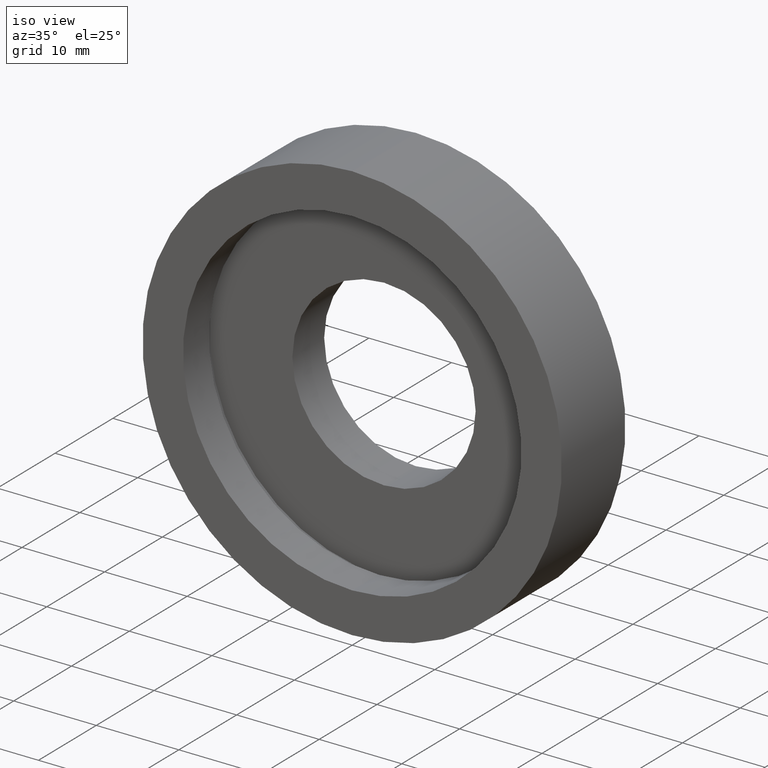
[diagram: clean part render]
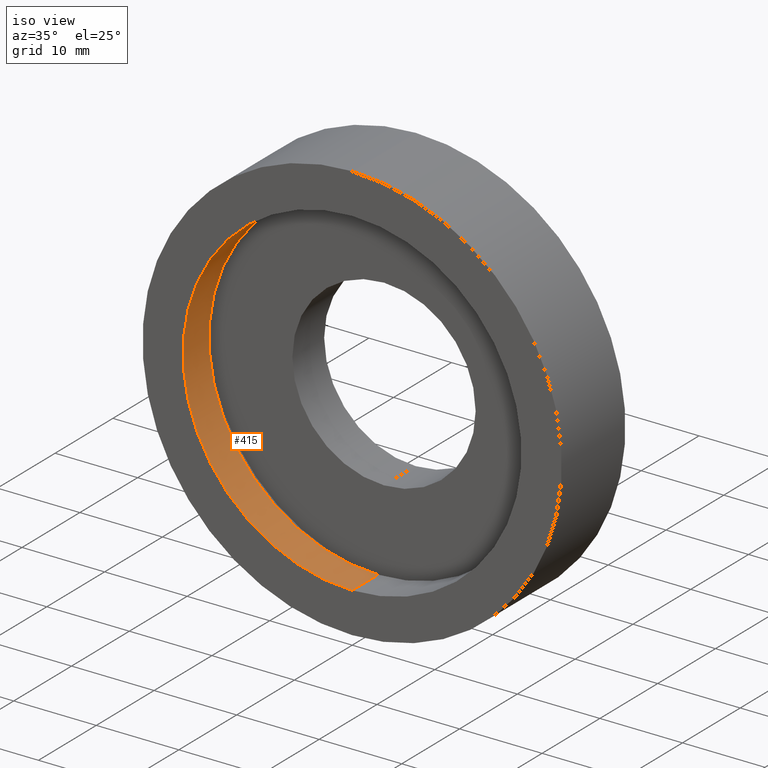
[diagram: same view with one face highlighted and labeled with its STEP entity id]
A machine part, iso view. The second image highlights one B-rep face of the part: STEP entity #415.
In plain terms, the highlighted cylindrical surface (partial cylindrical patch) has radius 20.5 mm, axis along (-0, 1, -0).
Its self-contained STEP definition (entity closure, byte-faithful):
#23 = AXIS2_PLACEMENT_3D ( 'NONE', #37, #196, #148 ) ;
#35 = DIRECTION ( 'NONE',  ( -0.0000000000000000000, 1.000000000000000000, -0.0000000000000000000 ) ) ;
#37 = CARTESIAN_POINT ( 'NONE',  ( 0.0000000000000000000, 0.0000000000000000000, 0.0000000000000000000 ) ) ;
#44 = ORIENTED_EDGE ( 'NONE', *, *, #390, .F. ) ;
#49 = DIRECTION ( 'NONE',  ( -0.0000000000000000000, 1.000000000000000000, -0.0000000000000000000 ) ) ;
#53 = CIRCLE ( 'NONE', #213, 20.50000000000000700 ) ;
#78 = DIRECTION ( 'NONE',  ( 0.0000000000000000000, 0.0000000000000000000, 1.000000000000000000 ) ) ;
#80 = FACE_OUTER_BOUND ( 'NONE', #328, .T. ) ;
#90 = DIRECTION ( 'NONE',  ( -0.0000000000000000000, 1.000000000000000000, -0.0000000000000000000 ) ) ;
#122 = VERTEX_POINT ( 'NONE', #406 ) ;
#137 = LINE ( 'NONE', #401, #348 ) ;
#139 = EDGE_CURVE ( 'NONE', #122, #315, #53, .T. ) ;
#148 = DIRECTION ( 'NONE',  ( 0.0000000000000000000, 0.0000000000000000000, 1.000000000000000000 ) ) ;
#174 = ORIENTED_EDGE ( 'NONE', *, *, #139, .T. ) ;
#194 = AXIS2_PLACEMENT_3D ( 'NONE', #426, #49, #258 ) ;
#196 = DIRECTION ( 'NONE',  ( -0.0000000000000000000, 1.000000000000000000, -0.0000000000000000000 ) ) ;
#206 = LINE ( 'NONE', #279, #429 ) ;
#213 = AXIS2_PLACEMENT_3D ( 'NONE', #214, #35, #78 ) ;
#214 = CARTESIAN_POINT ( 'NONE',  ( 0.0000000000000000000, 4.499999999999997300, 0.0000000000000000000 ) ) ;
#244 = VERTEX_POINT ( 'NONE', #358 ) ;
#258 = DIRECTION ( 'NONE',  ( 0.0000000000000000000, 0.0000000000000000000, 1.000000000000000000 ) ) ;
#274 = CIRCLE ( 'NONE', #23, 20.50000000000000700 ) ;
#279 = CARTESIAN_POINT ( 'NONE',  ( 0.0000000000000000000, 60.02082041425541100, 20.50000000000000700 ) ) ;
#286 = DIRECTION ( 'NONE',  ( -0.0000000000000000000, 1.000000000000000000, -0.0000000000000000000 ) ) ;
#301 = EDGE_CURVE ( 'NONE', #244, #408, #274, .T. ) ;
#311 = CYLINDRICAL_SURFACE ( 'NONE', #194, 20.50000000000000700 ) ;
#315 = VERTEX_POINT ( 'NONE', #368 ) ;
#316 = ORIENTED_EDGE ( 'NONE', *, *, #301, .F. ) ;
#328 = EDGE_LOOP ( 'NONE', ( #316, #329, #174, #44 ) ) ;
#329 = ORIENTED_EDGE ( 'NONE', *, *, #410, .T. ) ;
#348 = VECTOR ( 'NONE', #286, 1000.000000000000000 ) ;
#358 = CARTESIAN_POINT ( 'NONE',  ( 2.510525938252074900E-015, 0.0000000000000000000, -20.50000000000000700 ) ) ;
#368 = CARTESIAN_POINT ( 'NONE',  ( 0.0000000000000000000, 4.499999999999997300, 20.50000000000000700 ) ) ;
#390 = EDGE_CURVE ( 'NONE', #408, #315, #206, .T. ) ;
#401 = CARTESIAN_POINT ( 'NONE',  ( 2.510525938252074900E-015, 60.02082041425541100, -20.50000000000000700 ) ) ;
#406 = CARTESIAN_POINT ( 'NONE',  ( 2.510525938252074900E-015, 4.499999999999997300, -20.50000000000000700 ) ) ;
#408 = VERTEX_POINT ( 'NONE', #422 ) ;
#410 = EDGE_CURVE ( 'NONE', #244, #122, #137, .T. ) ;
#415 = ADVANCED_FACE ( 'NONE', ( #80 ), #311, .F. ) ;
#422 = CARTESIAN_POINT ( 'NONE',  ( 0.0000000000000000000, 0.0000000000000000000, 20.50000000000000700 ) ) ;
#426 = CARTESIAN_POINT ( 'NONE',  ( 0.0000000000000000000, 60.02082041425541100, 0.0000000000000000000 ) ) ;
#429 = VECTOR ( 'NONE', #90, 1000.000000000000000 ) ;